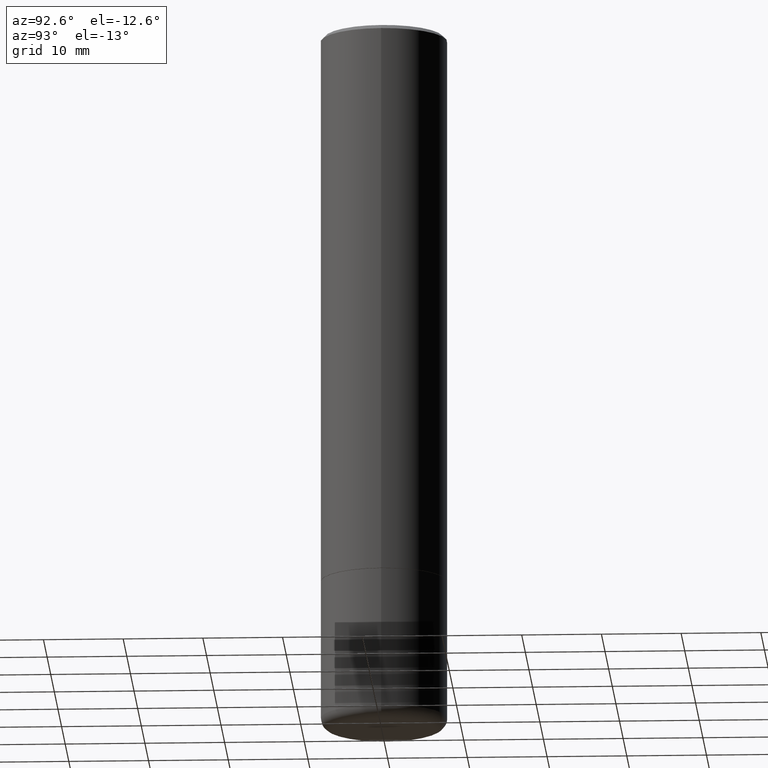
[diagram: clean part render]
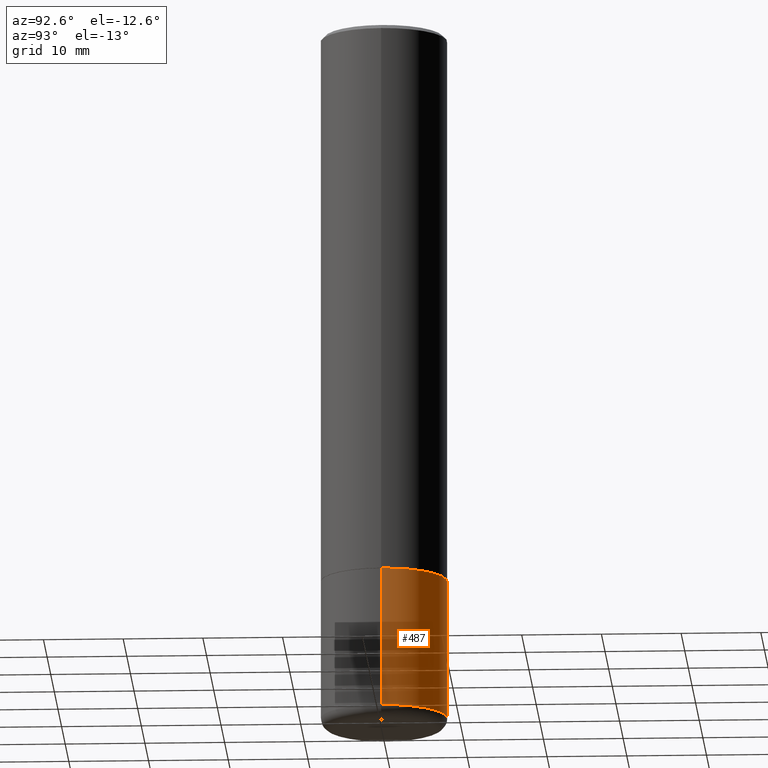
[diagram: same view with one face highlighted and labeled with its STEP entity id]
A machine part, auxiliary view. The second image highlights one B-rep face of the part: STEP entity #487.
In plain terms, the highlighted cylindrical surface (partial cylindrical patch) has radius 7.9375 mm, axis along (-0, 0, 1).
Its self-contained STEP definition (entity closure, byte-faithful):
#17 = DIRECTION ( 'NONE',  ( 1.000000000000000000, -6.982962677686266711E-15, 4.876176775795936353E-29 ) ) ;
#20 = EDGE_CURVE ( 'NONE', #246, #224, #390, .T. ) ;
#24 = DIRECTION ( 'NONE',  ( -2.445468806185136597E-29, 3.491481338843145583E-15, 1.000000000000000000 ) ) ;
#30 = CARTESIAN_POINT ( 'NONE',  ( 0.3124999999999994449, -1.178374951859560505E-14, -2.750000000000000000 ) ) ;
#33 = CARTESIAN_POINT ( 'NONE',  ( 0.3125000000000000000, -1.419287961909203023E-14, -3.440002284616148653 ) ) ;
#56 = DIRECTION ( 'NONE',  ( 1.000000000000000000, -6.982962677686269077E-15, 0.000000000000000000 ) ) ;
#60 = CARTESIAN_POINT ( 'NONE',  ( 6.725039217009124520E-29, -9.601573681818649859E-15, -2.750000000000000000 ) ) ;
#66 = CARTESIAN_POINT ( 'NONE',  ( 0.3124999999999997224, -2.182175836776956375E-15, 1.523805242436228674E-29 ) ) ;
#95 = AXIS2_PLACEMENT_3D ( 'NONE', #60, #209, #170 ) ;
#108 = LINE ( 'NONE', #66, #319 ) ;
#129 = VECTOR ( 'NONE', #287, 39.37007874015748143 ) ;
#138 = CARTESIAN_POINT ( 'NONE',  ( -0.3124999999999997224, 2.220446049250311109E-15, -1.537167215704656831E-29 ) ) ;
#155 = CARTESIAN_POINT ( 'NONE',  ( 8.412418280234396057E-29, -1.201070378231507189E-14, -3.440002284616148653 ) ) ;
#170 = DIRECTION ( 'NONE',  ( 1.000000000000000000, -6.982962677686269077E-15, 0.000000000000000000 ) ) ;
#209 = DIRECTION ( 'NONE',  ( -2.445468806185136597E-29, 3.491481338843145583E-15, 1.000000000000000000 ) ) ;
#212 = ORIENTED_EDGE ( 'NONE', *, *, #20, .F. ) ;
#214 = DIRECTION ( 'NONE',  ( -2.445468806185136877E-29, 3.491481338843145188E-15, 1.000000000000000000 ) ) ;
#224 = VERTEX_POINT ( 'NONE', #403 ) ;
#231 = VERTEX_POINT ( 'NONE', #33 ) ;
#243 = EDGE_CURVE ( 'NONE', #231, #246, #108, .T. ) ;
#246 = VERTEX_POINT ( 'NONE', #30 ) ;
#262 = EDGE_CURVE ( 'NONE', #449, #224, #485, .T. ) ;
#287 = DIRECTION ( 'NONE',  ( -2.445468806185136877E-29, 3.491481338843145188E-15, 1.000000000000000000 ) ) ;
#294 = EDGE_LOOP ( 'NONE', ( #322, #429, #212, #386 ) ) ;
#319 = VECTOR ( 'NONE', #214, 39.37007874015748143 ) ;
#322 = ORIENTED_EDGE ( 'NONE', *, *, #433, .T. ) ;
#354 = CYLINDRICAL_SURFACE ( 'NONE', #472, 0.3124999999999997224 ) ;
#356 = FACE_OUTER_BOUND ( 'NONE', #294, .T. ) ;
#364 = AXIS2_PLACEMENT_3D ( 'NONE', #155, #392, #56 ) ;
#386 = ORIENTED_EDGE ( 'NONE', *, *, #243, .F. ) ;
#390 = CIRCLE ( 'NONE', #95, 0.3124999999999994449 ) ;
#392 = DIRECTION ( 'NONE',  ( -2.445468806185136597E-29, 3.491481338843145583E-15, 1.000000000000000000 ) ) ;
#394 = CARTESIAN_POINT ( 'NONE',  ( -0.3125000000000000000, -8.585692682816546214E-15, -3.440002284616148653 ) ) ;
#396 = CIRCLE ( 'NONE', #364, 0.3125000000000000000 ) ;
#403 = CARTESIAN_POINT ( 'NONE',  ( -0.3124999999999994449, -8.585692682816550947E-15, -2.750000000000000000 ) ) ;
#429 = ORIENTED_EDGE ( 'NONE', *, *, #262, .T. ) ;
#430 = CARTESIAN_POINT ( 'NONE',  ( 0.000000000000000000, 0.000000000000000000, 0.000000000000000000 ) ) ;
#433 = EDGE_CURVE ( 'NONE', #231, #449, #396, .T. ) ;
#449 = VERTEX_POINT ( 'NONE', #394 ) ;
#472 = AXIS2_PLACEMENT_3D ( 'NONE', #430, #24, #17 ) ;
#485 = LINE ( 'NONE', #138, #129 ) ;
#487 = ADVANCED_FACE ( 'NONE', ( #356 ), #354, .T. ) ;